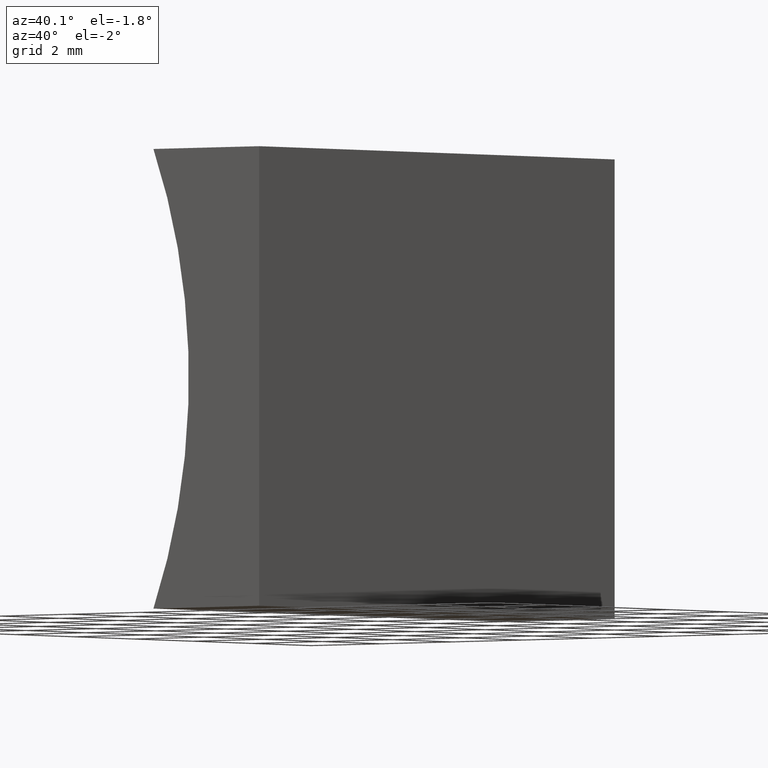
[diagram: clean part render]
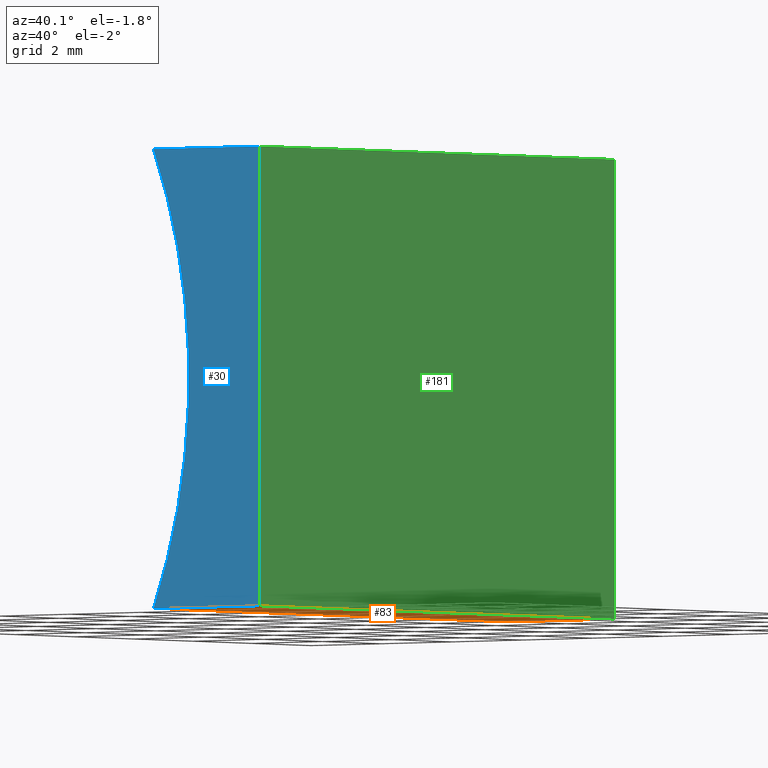
[diagram: same view with three faces highlighted in distinct colors, each labeled with its STEP entity id]
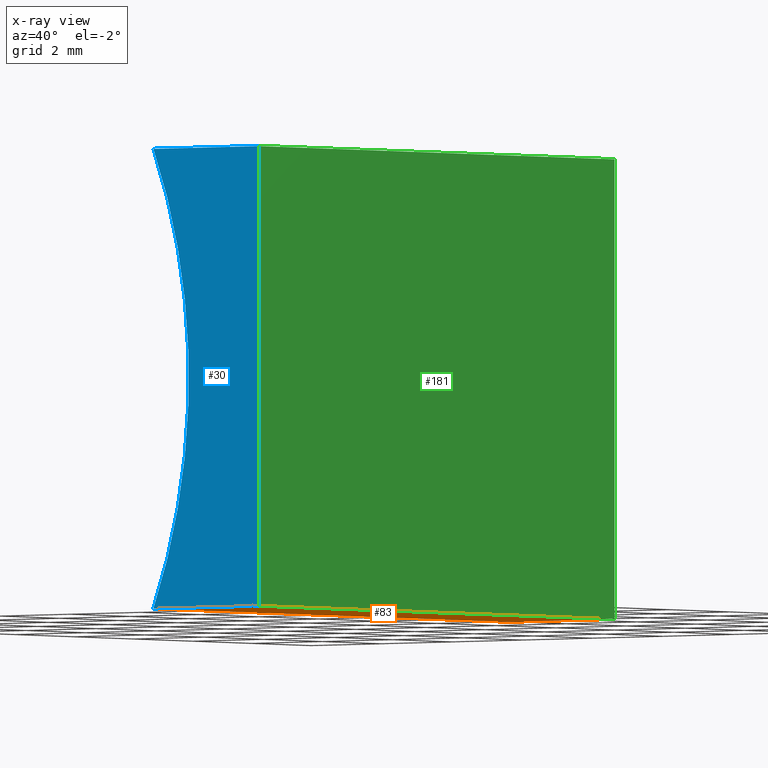
[diagram: x-ray of the same camera — body ghosted, the three highlighted faces saturated]
A machine part, auxiliary view with three faces highlighted in distinct colors.
The next image is the same camera in x-ray (body ghosted, the three faces saturated) — at least one of them is partly hidden behind the body in this view.
Their STEP definitions:

[orange] entity #83 — the highlighted planar face has unit normal (0, -0, 1).
#7 = ORIENTED_EDGE ( 'NONE', *, *, #147, .F. ) ;
#10 = AXIS2_PLACEMENT_3D ( 'NONE', #66, #125, #27 ) ;
#16 = FACE_OUTER_BOUND ( 'NONE', #33, .T. ) ;
#24 = ORIENTED_EDGE ( 'NONE', *, *, #77, .T. ) ;
#27 = DIRECTION ( 'NONE',  ( 1.000000000000000000, 0.0000000000000000000, -5.771121341056380500E-016 ) ) ;
#33 = EDGE_LOOP ( 'NONE', ( #24, #7, #84, #86 ) ) ;
#38 = LINE ( 'NONE', #202, #196 ) ;
#43 = CARTESIAN_POINT ( 'NONE',  ( 0.0000000000000000000, 12.00000000000000000, 0.0000000000000000000 ) ) ;
#51 = VERTEX_POINT ( 'NONE', #43 ) ;
#52 = VECTOR ( 'NONE', #142, 1000.000000000000000 ) ;
#53 = VERTEX_POINT ( 'NONE', #96 ) ;
#56 = DIRECTION ( 'NONE',  ( -1.000000000000000000, 0.0000000000000000000, 5.771121341056380500E-016 ) ) ;
#59 = CARTESIAN_POINT ( 'NONE',  ( 0.0000000000000000000, 12.00000000000000000, 0.0000000000000000000 ) ) ;
#66 = CARTESIAN_POINT ( 'NONE',  ( 0.0000000000000000000, 12.00000000000000000, 0.0000000000000000000 ) ) ;
#77 = EDGE_CURVE ( 'NONE', #132, #120, #173, .T. ) ;
#83 = ADVANCED_FACE ( 'NONE', ( #16 ), #140, .F. ) ;
#84 = ORIENTED_EDGE ( 'NONE', *, *, #168, .F. ) ;
#85 = LINE ( 'NONE', #137, #159 ) ;
#86 = ORIENTED_EDGE ( 'NONE', *, *, #171, .T. ) ;
#95 = CARTESIAN_POINT ( 'NONE',  ( 0.0000000000000000000, 0.0000000000000000000, 0.0000000000000000000 ) ) ;
#96 = CARTESIAN_POINT ( 'NONE',  ( -3.005869004409588400, 12.00000000000000000, 8.673617379884035500E-016 ) ) ;
#114 = LINE ( 'NONE', #59, #52 ) ;
#120 = VERTEX_POINT ( 'NONE', #178 ) ;
#123 = VECTOR ( 'NONE', #56, 1000.000000000000000 ) ;
#125 = DIRECTION ( 'NONE',  ( 5.771121341056380500E-016, -0.0000000000000000000, 1.000000000000000000 ) ) ;
#127 = DIRECTION ( 'NONE',  ( -0.0000000000000000000, -1.000000000000000000, -0.0000000000000000000 ) ) ;
#132 = VERTEX_POINT ( 'NONE', #95 ) ;
#137 = CARTESIAN_POINT ( 'NONE',  ( -3.005869004409588400, 12.00000000000000000, 8.673617379884035500E-016 ) ) ;
#140 = PLANE ( 'NONE',  #10 ) ;
#142 = DIRECTION ( 'NONE',  ( -1.000000000000000000, 0.0000000000000000000, 5.771121341056380500E-016 ) ) ;
#147 = EDGE_CURVE ( 'NONE', #53, #120, #85, .T. ) ;
#159 = VECTOR ( 'NONE', #180, 1000.000000000000000 ) ;
#160 = CARTESIAN_POINT ( 'NONE',  ( 0.0000000000000000000, 0.0000000000000000000, 0.0000000000000000000 ) ) ;
#168 = EDGE_CURVE ( 'NONE', #51, #53, #114, .T. ) ;
#171 = EDGE_CURVE ( 'NONE', #51, #132, #38, .T. ) ;
#173 = LINE ( 'NONE', #160, #123 ) ;
#178 = CARTESIAN_POINT ( 'NONE',  ( -3.005869004409588400, 0.0000000000000000000, 8.673617379884035500E-016 ) ) ;
#180 = DIRECTION ( 'NONE',  ( -0.0000000000000000000, -1.000000000000000000, -0.0000000000000000000 ) ) ;
#196 = VECTOR ( 'NONE', #127, 1000.000000000000000 ) ;
#202 = CARTESIAN_POINT ( 'NONE',  ( 0.0000000000000000000, 12.00000000000000000, 0.0000000000000000000 ) ) ;

[blue] entity #30 — the highlighted planar face has unit normal (0, 1, 0).
#6 = DIRECTION ( 'NONE',  ( -0.0000000000000000000, -1.000000000000000000, -0.0000000000000000000 ) ) ;
#8 = LINE ( 'NONE', #26, #48 ) ;
#14 = DIRECTION ( 'NONE',  ( 0.0000000000000000000, -0.0000000000000000000, 1.000000000000000000 ) ) ;
#21 = AXIS2_PLACEMENT_3D ( 'NONE', #104, #6, #93 ) ;
#25 = ORIENTED_EDGE ( 'NONE', *, *, #152, .F. ) ;
#26 = CARTESIAN_POINT ( 'NONE',  ( 0.0000000000000000000, 0.0000000000000000000, 0.0000000000000000000 ) ) ;
#30 = ADVANCED_FACE ( 'NONE', ( #139 ), #31, .F. ) ;
#31 = PLANE ( 'NONE',  #179 ) ;
#32 = CARTESIAN_POINT ( 'NONE',  ( -3.005869004409587500, 0.0000000000000000000, 9.999999999999998200 ) ) ;
#36 = DIRECTION ( 'NONE',  ( -6.123233995736766000E-017, -0.0000000000000000000, -1.000000000000000000 ) ) ;
#48 = VECTOR ( 'NONE', #36, 1000.000000000000000 ) ;
#56 = DIRECTION ( 'NONE',  ( -1.000000000000000000, 0.0000000000000000000, 5.771121341056380500E-016 ) ) ;
#69 = ORIENTED_EDGE ( 'NONE', *, *, #77, .F. ) ;
#77 = EDGE_CURVE ( 'NONE', #132, #120, #173, .T. ) ;
#93 = DIRECTION ( 'NONE',  ( 0.0000000000000000000, 0.0000000000000000000, 1.000000000000000000 ) ) ;
#95 = CARTESIAN_POINT ( 'NONE',  ( 0.0000000000000000000, 0.0000000000000000000, 0.0000000000000000000 ) ) ;
#99 = DIRECTION ( 'NONE',  ( 1.000000000000000000, -0.0000000000000000000, 5.771121341056381500E-016 ) ) ;
#103 = VERTEX_POINT ( 'NONE', #158 ) ;
#104 = CARTESIAN_POINT ( 'NONE',  ( -14.93000000000000000, 0.0000000000000000000, 5.000000000000000900 ) ) ;
#111 = CARTESIAN_POINT ( 'NONE',  ( 6.123233995736766300E-016, 0.0000000000000000000, 10.00000000000000000 ) ) ;
#113 = LINE ( 'NONE', #111, #204 ) ;
#117 = CIRCLE ( 'NONE', #21, 12.93000000000000000 ) ;
#120 = VERTEX_POINT ( 'NONE', #178 ) ;
#123 = VECTOR ( 'NONE', #56, 1000.000000000000000 ) ;
#132 = VERTEX_POINT ( 'NONE', #95 ) ;
#134 = EDGE_CURVE ( 'NONE', #120, #154, #117, .T. ) ;
#135 = EDGE_LOOP ( 'NONE', ( #69, #187, #25, #148 ) ) ;
#136 = EDGE_CURVE ( 'NONE', #103, #132, #8, .T. ) ;
#139 = FACE_OUTER_BOUND ( 'NONE', #135, .T. ) ;
#141 = DIRECTION ( 'NONE',  ( 0.0000000000000000000, 1.000000000000000000, 0.0000000000000000000 ) ) ;
#148 = ORIENTED_EDGE ( 'NONE', *, *, #134, .F. ) ;
#152 = EDGE_CURVE ( 'NONE', #154, #103, #113, .T. ) ;
#154 = VERTEX_POINT ( 'NONE', #32 ) ;
#158 = CARTESIAN_POINT ( 'NONE',  ( 6.123233995736766300E-016, 0.0000000000000000000, 10.00000000000000000 ) ) ;
#160 = CARTESIAN_POINT ( 'NONE',  ( 0.0000000000000000000, 0.0000000000000000000, 0.0000000000000000000 ) ) ;
#164 = CARTESIAN_POINT ( 'NONE',  ( -14.93000000000000000, 0.0000000000000000000, 5.000000000000000900 ) ) ;
#173 = LINE ( 'NONE', #160, #123 ) ;
#178 = CARTESIAN_POINT ( 'NONE',  ( -3.005869004409588400, 0.0000000000000000000, 8.673617379884035500E-016 ) ) ;
#179 = AXIS2_PLACEMENT_3D ( 'NONE', #164, #141, #14 ) ;
#187 = ORIENTED_EDGE ( 'NONE', *, *, #136, .F. ) ;
#204 = VECTOR ( 'NONE', #99, 1000.000000000000000 ) ;

[green] entity #181 — the highlighted planar face has unit normal (-1, 0, 0).
#8 = LINE ( 'NONE', #26, #48 ) ;
#13 = DIRECTION ( 'NONE',  ( -1.000000000000000000, 0.0000000000000000000, 6.123233995736766000E-017 ) ) ;
#26 = CARTESIAN_POINT ( 'NONE',  ( 0.0000000000000000000, 0.0000000000000000000, 0.0000000000000000000 ) ) ;
#28 = DIRECTION ( 'NONE',  ( 6.123233995736766000E-017, 0.0000000000000000000, 1.000000000000000000 ) ) ;
#34 = VECTOR ( 'NONE', #182, 1000.000000000000000 ) ;
#36 = DIRECTION ( 'NONE',  ( -6.123233995736766000E-017, -0.0000000000000000000, -1.000000000000000000 ) ) ;
#38 = LINE ( 'NONE', #202, #196 ) ;
#39 = EDGE_CURVE ( 'NONE', #61, #51, #150, .T. ) ;
#43 = CARTESIAN_POINT ( 'NONE',  ( 0.0000000000000000000, 12.00000000000000000, 0.0000000000000000000 ) ) ;
#48 = VECTOR ( 'NONE', #36, 1000.000000000000000 ) ;
#50 = VECTOR ( 'NONE', #68, 1000.000000000000000 ) ;
#51 = VERTEX_POINT ( 'NONE', #43 ) ;
#61 = VERTEX_POINT ( 'NONE', #82 ) ;
#67 = CARTESIAN_POINT ( 'NONE',  ( 0.0000000000000000000, 12.00000000000000000, 0.0000000000000000000 ) ) ;
#68 = DIRECTION ( 'NONE',  ( -0.0000000000000000000, -1.000000000000000000, -0.0000000000000000000 ) ) ;
#82 = CARTESIAN_POINT ( 'NONE',  ( 6.123233995736766300E-016, 12.00000000000000000, 10.00000000000000000 ) ) ;
#88 = ORIENTED_EDGE ( 'NONE', *, *, #39, .F. ) ;
#92 = CARTESIAN_POINT ( 'NONE',  ( 0.0000000000000000000, 12.00000000000000000, 0.0000000000000000000 ) ) ;
#95 = CARTESIAN_POINT ( 'NONE',  ( 0.0000000000000000000, 0.0000000000000000000, 0.0000000000000000000 ) ) ;
#103 = VERTEX_POINT ( 'NONE', #158 ) ;
#105 = ORIENTED_EDGE ( 'NONE', *, *, #184, .T. ) ;
#110 = PLANE ( 'NONE',  #146 ) ;
#127 = DIRECTION ( 'NONE',  ( -0.0000000000000000000, -1.000000000000000000, -0.0000000000000000000 ) ) ;
#132 = VERTEX_POINT ( 'NONE', #95 ) ;
#133 = ORIENTED_EDGE ( 'NONE', *, *, #136, .T. ) ;
#136 = EDGE_CURVE ( 'NONE', #103, #132, #8, .T. ) ;
#146 = AXIS2_PLACEMENT_3D ( 'NONE', #92, #13, #28 ) ;
#150 = LINE ( 'NONE', #67, #34 ) ;
#151 = FACE_OUTER_BOUND ( 'NONE', #176, .T. ) ;
#158 = CARTESIAN_POINT ( 'NONE',  ( 6.123233995736766300E-016, 0.0000000000000000000, 10.00000000000000000 ) ) ;
#167 = LINE ( 'NONE', #183, #50 ) ;
#171 = EDGE_CURVE ( 'NONE', #51, #132, #38, .T. ) ;
#176 = EDGE_LOOP ( 'NONE', ( #133, #189, #88, #105 ) ) ;
#181 = ADVANCED_FACE ( 'NONE', ( #151 ), #110, .F. ) ;
#182 = DIRECTION ( 'NONE',  ( -6.123233995736766000E-017, -0.0000000000000000000, -1.000000000000000000 ) ) ;
#183 = CARTESIAN_POINT ( 'NONE',  ( 6.123233995736766300E-016, 12.00000000000000000, 10.00000000000000000 ) ) ;
#184 = EDGE_CURVE ( 'NONE', #61, #103, #167, .T. ) ;
#189 = ORIENTED_EDGE ( 'NONE', *, *, #171, .F. ) ;
#196 = VECTOR ( 'NONE', #127, 1000.000000000000000 ) ;
#202 = CARTESIAN_POINT ( 'NONE',  ( 0.0000000000000000000, 12.00000000000000000, 0.0000000000000000000 ) ) ;